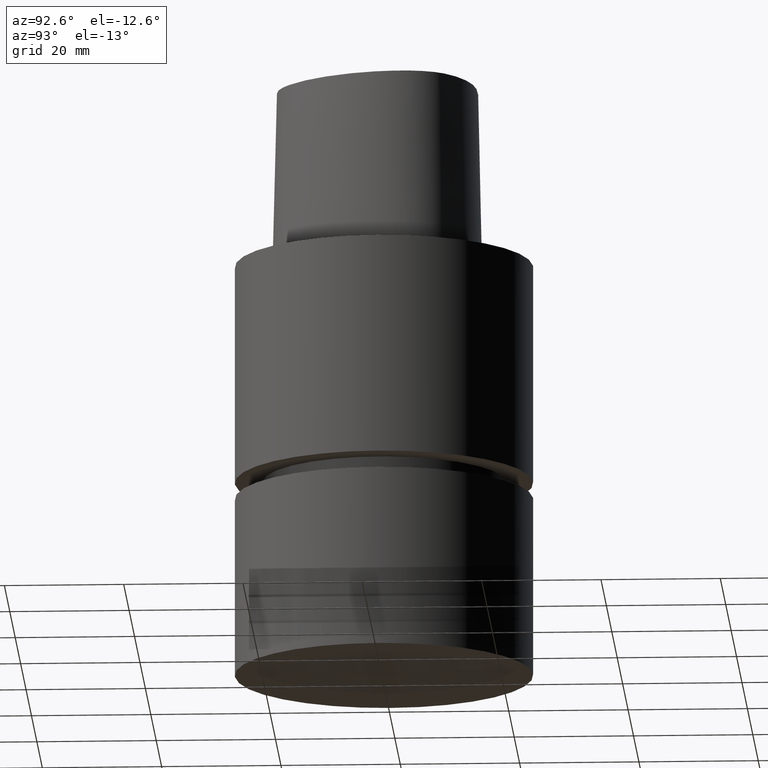
[diagram: clean part render]
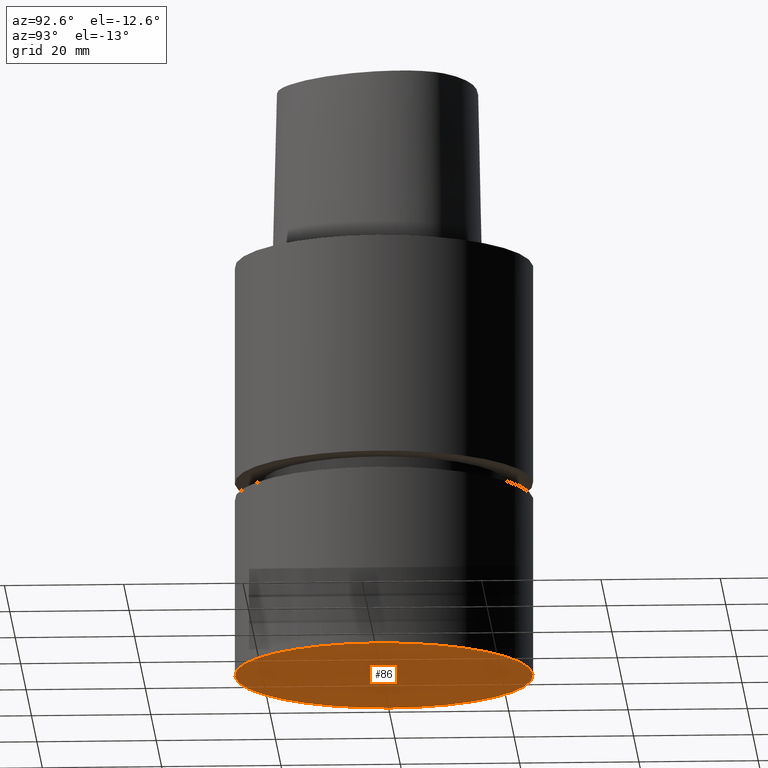
[diagram: same view with one face highlighted and labeled with its STEP entity id]
A machine part, auxiliary view. The second image highlights one B-rep face of the part: STEP entity #86.
In plain terms, the highlighted planar face has unit normal (0, 0, -1).
Its self-contained STEP definition (entity closure, byte-faithful):
#63=EDGE_CURVE('Unnamed[1]',#151,#151,#152,.T.);
#86=ADVANCED_FACE('Unnamed[1]',(#187),#188,.T.);
#151=VERTEX_POINT('',#264);
#152=CIRCLE('',#265,25.0);
#187=FACE_OUTER_BOUND('',#407,.T.);
#188=PLANE('',#408);
#264=CARTESIAN_POINT('',(4.28626379701574E-015,25.0,-70.0));
#265=AXIS2_PLACEMENT_3D('',#916,#917,#918);
#407=EDGE_LOOP('',(#950));
#408=AXIS2_PLACEMENT_3D('',#951,#952,#953);
#916=CARTESIAN_POINT('',(4.28626379701574E-015,8.57252759403147E-015,-70.0));
#917=DIRECTION('',(6.12323399573677E-017,1.22464679914735E-016,-1.0));
#918=DIRECTION('',(-1.23259516440783E-032,1.0,1.22464679914735E-016));
#950=ORIENTED_EDGE('',*,*,#63,.T.);
#951=CARTESIAN_POINT('',(4.28626379701574E-015,12.5,-70.0));
#952=DIRECTION('',(6.12323399573677E-017,1.22464679914735E-016,-1.0));
#953=DIRECTION('',(-1.23259516440783E-032,1.0,1.22464679914735E-016));